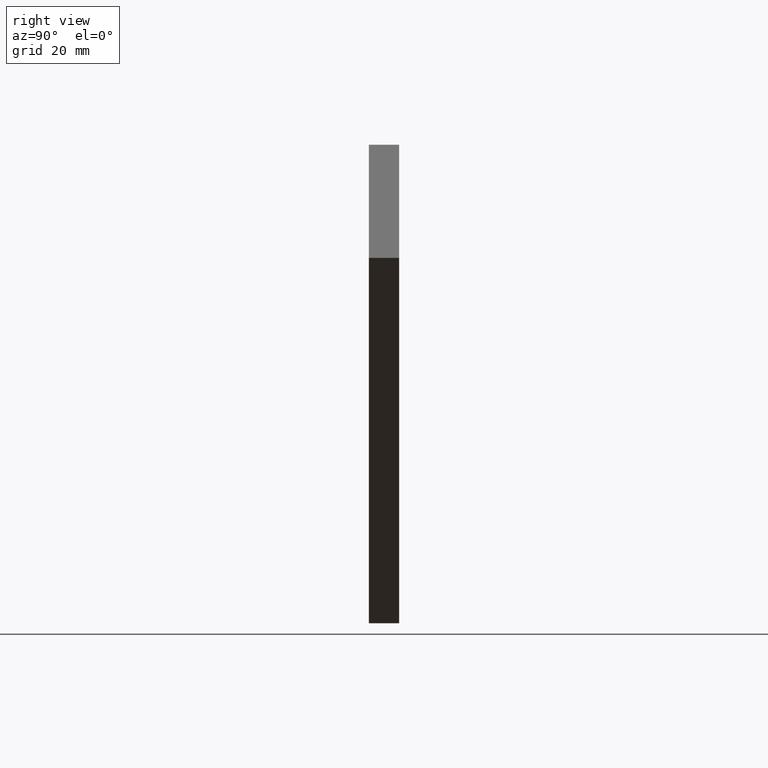
[diagram: clean part render]
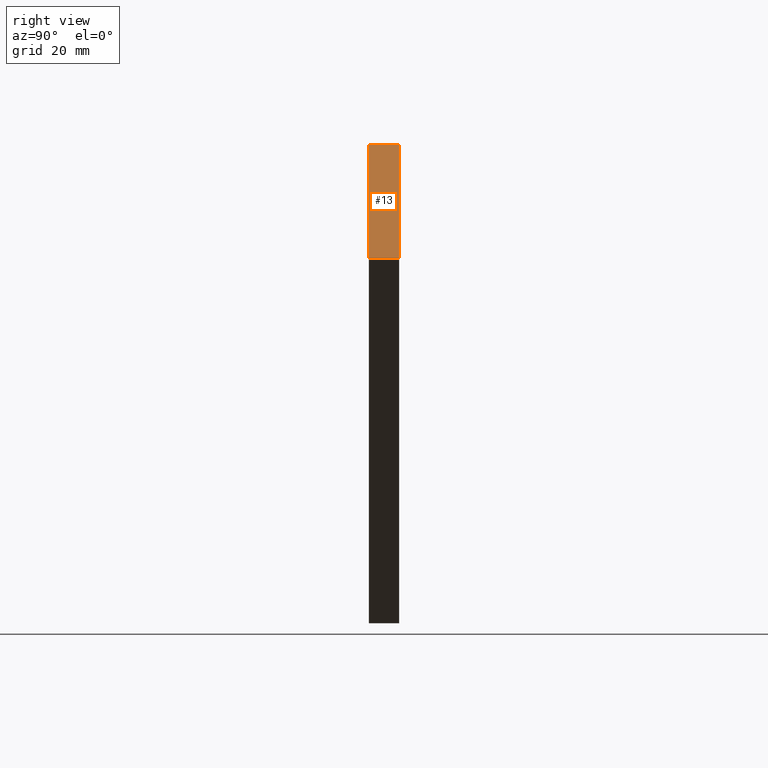
[diagram: same view with one face highlighted and labeled with its STEP entity id]
A machine part, right view. The second image highlights one B-rep face of the part: STEP entity #13.
In plain terms, the highlighted planar face has unit normal (-0.866, 0, -0.5).
Its self-contained STEP definition (entity closure, byte-faithful):
#13 = ADVANCED_FACE ( 'NONE', ( #938 ), #367, .F. ) ;
#34 = VERTEX_POINT ( 'NONE', #206 ) ;
#36 = VERTEX_POINT ( 'NONE', #205 ) ;
#37 = VERTEX_POINT ( 'NONE', #204 ) ;
#38 = VERTEX_POINT ( 'NONE', #203 ) ;
#203 = CARTESIAN_POINT ( 'NONE',  ( 2.624785217660712300, 0.3750000000000000600, 2.453738644055909900 ) ) ;
#204 = CARTESIAN_POINT ( 'NONE',  ( 3.437392608830355900, 0.3750000000000000600, 1.046261355944088800 ) ) ;
#205 = CARTESIAN_POINT ( 'NONE',  ( 3.437392608830355900, 0.0000000000000000000, 1.046261355944088800 ) ) ;
#206 = CARTESIAN_POINT ( 'NONE',  ( 2.624785217660712300, 0.0000000000000000000, 2.453738644055909900 ) ) ;
#279 = DIRECTION ( 'NONE',  ( -0.0000000000000000000, -1.000000000000000000, -0.0000000000000000000 ) ) ;
#280 = CARTESIAN_POINT ( 'NONE',  ( 3.437392608830355900, 0.3750000000000000600, 1.046261355944088800 ) ) ;
#281 = DIRECTION ( 'NONE',  ( -0.0000000000000000000, -1.000000000000000000, -0.0000000000000000000 ) ) ;
#282 = CARTESIAN_POINT ( 'NONE',  ( 2.624785217660712300, 0.3750000000000000600, 2.453738644055909900 ) ) ;
#294 = DIRECTION ( 'NONE',  ( 0.4999999999999997200, 0.0000000000000000000, -0.8660254037844388200 ) ) ;
#296 = CARTESIAN_POINT ( 'NONE',  ( 2.624785217660712300, 0.0000000000000000000, 2.453738644055909900 ) ) ;
#356 = DIRECTION ( 'NONE',  ( -0.4999999999999997200, 0.0000000000000000000, 0.8660254037844388200 ) ) ;
#360 = DIRECTION ( 'NONE',  ( -0.8660254037844388200, 0.0000000000000000000, -0.4999999999999997200 ) ) ;
#361 = DIRECTION ( 'NONE',  ( 0.4999999999999997200, 0.0000000000000000000, -0.8660254037844388200 ) ) ;
#362 = CARTESIAN_POINT ( 'NONE',  ( 2.624785217660712300, 0.3750000000000000600, 2.453738644055909900 ) ) ;
#363 = CARTESIAN_POINT ( 'NONE',  ( 2.624785217660712300, 0.3750000000000000600, 2.453738644055909900 ) ) ;
#367 = PLANE ( 'NONE',  #556 ) ;
#556 = AXIS2_PLACEMENT_3D ( 'NONE', #363, #360, #356 ) ;
#625 = EDGE_CURVE ( 'NONE', #38, #37, #807, .T. ) ;
#644 = EDGE_CURVE ( 'NONE', #34, #36, #780, .T. ) ;
#649 = EDGE_CURVE ( 'NONE', #38, #34, #771, .T. ) ;
#650 = EDGE_CURVE ( 'NONE', #37, #36, #769, .T. ) ;
#658 = ORIENTED_EDGE ( 'NONE', *, *, #650, .F. ) ;
#667 = ORIENTED_EDGE ( 'NONE', *, *, #625, .F. ) ;
#672 = ORIENTED_EDGE ( 'NONE', *, *, #644, .T. ) ;
#741 = ORIENTED_EDGE ( 'NONE', *, *, #649, .T. ) ;
#768 = VECTOR ( 'NONE', #279, 39.37007874015748100 ) ;
#769 = LINE ( 'NONE', #280, #768 ) ;
#770 = VECTOR ( 'NONE', #281, 39.37007874015748100 ) ;
#771 = LINE ( 'NONE', #282, #770 ) ;
#779 = VECTOR ( 'NONE', #294, 39.37007874015748900 ) ;
#780 = LINE ( 'NONE', #296, #779 ) ;
#806 = VECTOR ( 'NONE', #361, 39.37007874015748900 ) ;
#807 = LINE ( 'NONE', #362, #806 ) ;
#938 = FACE_OUTER_BOUND ( 'NONE', #1035, .T. ) ;
#1035 = EDGE_LOOP ( 'NONE', ( #672, #658, #667, #741 ) ) ;